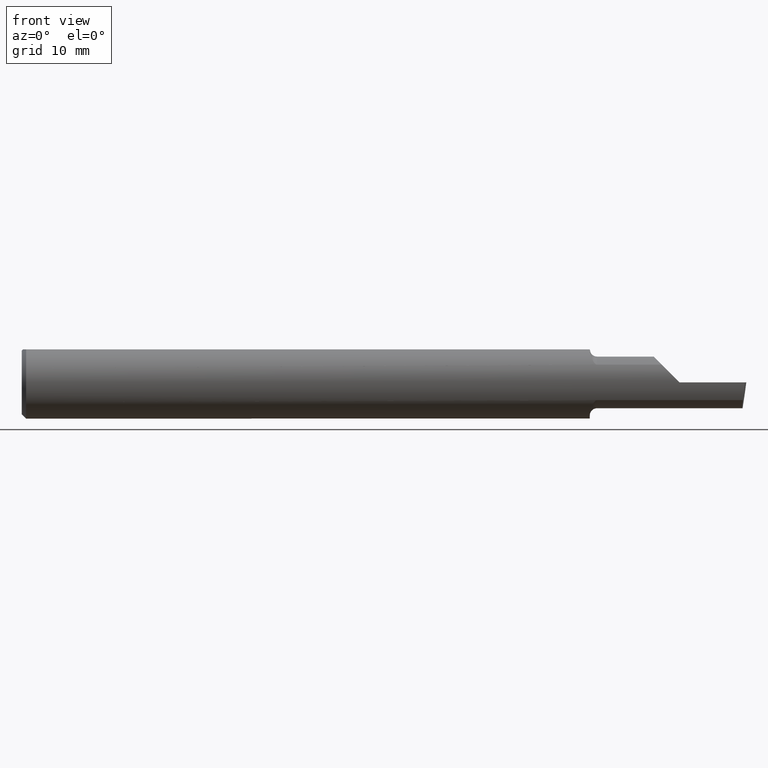
[diagram: clean part render]
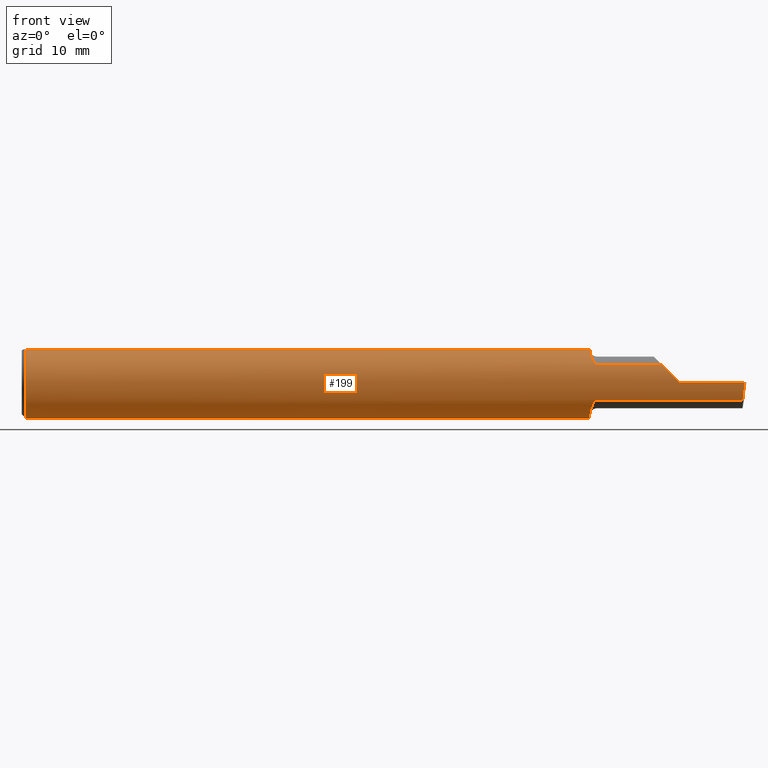
[diagram: same view with one face highlighted and labeled with its STEP entity id]
A machine part, front view. The second image highlights one B-rep face of the part: STEP entity #199.
In plain terms, the highlighted cylindrical surface (edge-blend (fillet) strip) has radius 3.1712 mm, axis along (-1, -0, -0).
Its self-contained STEP definition (entity closure, byte-faithful):
#2 = ORIENTED_EDGE ( 'NONE', *, *, #433, .F. ) ;
#10 = ORIENTED_EDGE ( 'NONE', *, *, #649, .F. ) ;
#19 = CARTESIAN_POINT ( 'NONE',  ( 2.494815187529301426, -0.1248500000000000304, -6.615452481474715797E-17 ) ) ;
#24 = EDGE_CURVE ( 'NONE', #72, #584, #338, .T. ) ;
#30 = DIRECTION ( 'NONE',  ( 0.0000000000000000000, 0.0000000000000000000, -1.000000000000000000 ) ) ;
#37 = B_SPLINE_CURVE_WITH_KNOTS ( 'NONE', 3,
 ( #599, #324, #480, #531, #265, #326, #372, #655, #144, #647, #149, #436 ),
 .UNSPECIFIED., .F., .F.,
 ( 4, 2, 2, 2, 2, 4 ),
 ( 1.958506483897801753E-07, 0.0001392669359846166399, 0.0002783380213208434643, 0.0005564801919932976012, 0.001112764533338206092, 0.002225333216028027410 ),
 .UNSPECIFIED. ) ;
#42 = CARTESIAN_POINT ( 'NONE',  ( 0.01499999999999999424, 0.0000000000000000000, 0.0000000000000000000 ) ) ;
#50 = B_SPLINE_CURVE_WITH_KNOTS ( 'NONE', 3,
 ( #122, #233, #346, #411, #131, #518, #524, #419, #198, #636, #695, #575, #247, #139 ),
 .UNSPECIFIED., .F., .F.,
 ( 4, 2, 2, 2, 2, 2, 4 ),
 ( 4.804672186336111182E-07, 0.0005473133578656328617, 0.001094146248512631965, 0.001640979139159630959, 0.001914395584483130890, 0.002051103807144887253, 0.002187812029806642748 ),
 .UNSPECIFIED. ) ;
#53 = EDGE_CURVE ( 'NONE', #387, #214, #674, .T. ) ;
#54 = CYLINDRICAL_SURFACE ( 'NONE', #143, 0.1248500000000000026 ) ;
#72 = VERTEX_POINT ( 'NONE', #19 ) ;
#73 = EDGE_CURVE ( 'NONE', #686, #331, #595, .T. ) ;
#74 = LINE ( 'NONE', #118, #170 ) ;
#79 =( BOUNDED_CURVE ( )  B_SPLINE_CURVE ( 3, ( #165, #545, #449, #669 ),
 .UNSPECIFIED., .F., .T. ) 
 B_SPLINE_CURVE_WITH_KNOTS ( ( 4, 4 ),
 ( 4.712388980384689674, 5.224783288303640916 ),
 .UNSPECIFIED. ) 
 CURVE ( )  GEOMETRIC_REPRESENTATION_ITEM ( )  RATIONAL_B_SPLINE_CURVE ( ( 1.000000000000000000, 0.9782404171696013062, 0.9782404171696013062, 1.000000000000000000 ) ) 
 REPRESENTATION_ITEM ( '' )  );
#83 = EDGE_CURVE ( 'NONE', #456, #152, #37, .T. ) ;
#97 = CARTESIAN_POINT ( 'NONE',  ( 2.489748215127380870, -0.1193864177600010845, -0.04241784104289512969 ) ) ;
#101 = DIRECTION ( 'NONE',  ( 0.0000000000000000000, 0.0000000000000000000, 1.000000000000000000 ) ) ;
#116 = CARTESIAN_POINT ( 'NONE',  ( 1.960000097795984608, -0.05124158467435454417, 0.1138500000000000345 ) ) ;
#118 = CARTESIAN_POINT ( 'NONE',  ( 0.0000000000000000000, -0.05124158467494919350, 0.1138500000000000345 ) ) ;
#122 = CARTESIAN_POINT ( 'NONE',  ( 1.960000097795984608, -0.05124158467435454417, 0.1138500000000000345 ) ) ;
#128 = CARTESIAN_POINT ( 'NONE',  ( 2.270000000000000018, -0.1248500000000000165, 2.816687638038912303E-17 ) ) ;
#131 = CARTESIAN_POINT ( 'NONE',  ( 1.963123628621459504, -0.08156933505673470697, 0.09478144068379323883 ) ) ;
#139 = CARTESIAN_POINT ( 'NONE',  ( 1.985000000000000098, -0.1088159090909094073, 0.06120964326573843234 ) ) ;
#143 = AXIS2_PLACEMENT_3D ( 'NONE', #332, #602, #101 ) ;
#144 = CARTESIAN_POINT ( 'NONE',  ( 1.966341859756229216, -0.09164079654472229164, -0.08508064213884949933 ) ) ;
#148 = EDGE_CURVE ( 'NONE', #611, #72, #379, .T. ) ;
#149 = CARTESIAN_POINT ( 'NONE',  ( 1.959999999999999520, -0.06435233443826804400, -0.1079743783864397788 ) ) ;
#152 = VERTEX_POINT ( 'NONE', #157 ) ;
#157 = CARTESIAN_POINT ( 'NONE',  ( 1.959999999999999964, -0.05106022727272737510, -0.1139314517192571846 ) ) ;
#165 = CARTESIAN_POINT ( 'NONE',  ( 2.270000000000000018, -0.1248500000000000165, 2.816687638038912303E-17 ) ) ;
#170 = VECTOR ( 'NONE', #469, 39.37007874015748143 ) ;
#171 = EDGE_CURVE ( 'NONE', #584, #214, #79, .T. ) ;
#188 = EDGE_CURVE ( 'NONE', #152, #234, #461, .T. ) ;
#198 = CARTESIAN_POINT ( 'NONE',  ( 1.974298474000476977, -0.1041086701287579075, 0.06897617952042765788 ) ) ;
#199 = ADVANCED_FACE ( 'NONE', ( #439 ), #54, .T. ) ;
#200 = CIRCLE ( 'NONE', #333, 0.1248500000000000026 ) ;
#212 = DIRECTION ( 'NONE',  ( 0.0000000000000000000, 0.0000000000000000000, 1.000000000000000000 ) ) ;
#214 = VERTEX_POINT ( 'NONE', #680 ) ;
#233 = CARTESIAN_POINT ( 'NONE',  ( 1.960007259122698242, -0.05787968516888347681, 0.1108623250897052548 ) ) ;
#234 = VERTEX_POINT ( 'NONE', #404 ) ;
#240 = CARTESIAN_POINT ( 'NONE',  ( 0.01499999999999999424, 0.0000000000000000000, -0.1248500000000000026 ) ) ;
#247 = CARTESIAN_POINT ( 'NONE',  ( 1.983151621368536288, -0.1088159090914120330, 0.06120964326484491791 ) ) ;
#264 = VECTOR ( 'NONE', #554, 39.37007874015748143 ) ;
#265 = CARTESIAN_POINT ( 'NONE',  ( 1.977418472017428597, -0.1064706388662829128, -0.06522095769404975818 ) ) ;
#274 = DIRECTION ( 'NONE',  ( 1.000000000000000000, 0.0000000000000000000, 0.0000000000000000000 ) ) ;
#279 = ORIENTED_EDGE ( 'NONE', *, *, #24, .T. ) ;
#281 = CARTESIAN_POINT ( 'NONE',  ( 2.492166948426750128, -0.1248499999999999888, -0.02156078579982241214 ) ) ;
#288 = ORIENTED_EDGE ( 'NONE', *, *, #188, .F. ) ;
#305 = VERTEX_POINT ( 'NONE', #116 ) ;
#306 = CARTESIAN_POINT ( 'NONE',  ( 2.135000000000000231, -0.1088159090909091575, -0.06120964326573871683 ) ) ;
#308 = LINE ( 'NONE', #306, #525 ) ;
#324 = CARTESIAN_POINT ( 'NONE',  ( 1.983136503623037949, -0.1088159090909093379, -0.06120964326573845316 ) ) ;
#325 = EDGE_CURVE ( 'NONE', #686, #234, #380, .T. ) ;
#326 = CARTESIAN_POINT ( 'NONE',  ( 1.974260533375047144, -0.1040753176265711982, -0.06902783361385356198 ) ) ;
#328 = CARTESIAN_POINT ( 'NONE',  ( 1.959999999999999964, 0.0000000000000000000, 0.0000000000000000000 ) ) ;
#331 = VERTEX_POINT ( 'NONE', #240 ) ;
#332 = CARTESIAN_POINT ( 'NONE',  ( 0.0000000000000000000, 0.0000000000000000000, 0.0000000000000000000 ) ) ;
#333 = AXIS2_PLACEMENT_3D ( 'NONE', #42, #557, #495 ) ;
#338 = LINE ( 'NONE', #487, #429 ) ;
#346 = CARTESIAN_POINT ( 'NONE',  ( 1.960398955714025337, -0.06414339738310573247, 0.1073503907437361876 ) ) ;
#361 = CARTESIAN_POINT ( 'NONE',  ( 1.985000000000000098, -0.1088159090909094073, 0.06120964326573843234 ) ) ;
#363 = AXIS2_PLACEMENT_3D ( 'NONE', #707, #703, #212 ) ;
#372 = CARTESIAN_POINT ( 'NONE',  ( 1.972652750757541762, -0.1022351105670216975, -0.07173965961731917917 ) ) ;
#374 = DIRECTION ( 'NONE',  ( 1.000000000000000000, 0.0000000000000000000, 0.0000000000000000000 ) ) ;
#379 =( BOUNDED_CURVE ( )  B_SPLINE_CURVE ( 3, ( #384, #97, #281, #715 ),
 .UNSPECIFIED., .F., .T. ) 
 B_SPLINE_CURVE_WITH_KNOTS ( ( 4, 4 ),
 ( 0.8483525745957760655, 1.360746882514725309 ),
 .UNSPECIFIED. ) 
 CURVE ( )  GEOMETRIC_REPRESENTATION_ITEM ( )  RATIONAL_B_SPLINE_CURVE ( ( 1.000000000000000000, 0.9782404171696015283, 0.9782404171696015283, 1.000000000000000000 ) ) 
 REPRESENTATION_ITEM ( '' )  );
#380 = LINE ( 'NONE', #502, #264 ) ;
#384 = CARTESIAN_POINT ( 'NONE',  ( 2.487716879513912627, -0.1088159090909091575, -0.06120964326573871683 ) ) ;
#387 = VERTEX_POINT ( 'NONE', #361 ) ;
#395 = ORIENTED_EDGE ( 'NONE', *, *, #83, .F. ) ;
#398 = EDGE_LOOP ( 'NONE', ( #10, #503, #279, #665, #455, #650, #523, #2, #586, #700, #288, #395 ) ) ;
#404 = CARTESIAN_POINT ( 'NONE',  ( 1.959999999999999964, 0.05124158467494921432, 0.1138500000000000206 ) ) ;
#411 = CARTESIAN_POINT ( 'NONE',  ( 1.961949480984250593, -0.07596136197030141368, 0.09933958580695161078 ) ) ;
#419 = CARTESIAN_POINT ( 'NONE',  ( 1.972671163500537839, -0.1022596512739000207, 0.07170602318528794539 ) ) ;
#420 = DIRECTION ( 'NONE',  ( -1.000000000000000000, -0.0000000000000000000, -0.0000000000000000000 ) ) ;
#429 = VECTOR ( 'NONE', #699, 39.37007874015748143 ) ;
#433 = EDGE_CURVE ( 'NONE', #331, #484, #200, .T. ) ;
#436 = CARTESIAN_POINT ( 'NONE',  ( 1.959999999999999964, -0.05106022727272737510, -0.1139314517192571846 ) ) ;
#439 = FACE_OUTER_BOUND ( 'NONE', #398, .T. ) ;
#449 = CARTESIAN_POINT ( 'NONE',  ( 2.227582158957104763, -0.1193864177600010706, 0.04241784104289515744 ) ) ;
#455 = ORIENTED_EDGE ( 'NONE', *, *, #53, .F. ) ;
#456 = VERTEX_POINT ( 'NONE', #553 ) ;
#461 = CIRCLE ( 'NONE', #683, 0.1248500000000000026 ) ;
#469 = DIRECTION ( 'NONE',  ( -1.000000000000000000, -0.0000000000000000000, -0.0000000000000000000 ) ) ;
#480 = CARTESIAN_POINT ( 'NONE',  ( 1.981430773366643638, -0.1083837666170489045, -0.06198269038833995742 ) ) ;
#484 = VERTEX_POINT ( 'NONE', #726 ) ;
#487 = CARTESIAN_POINT ( 'NONE',  ( 4.111069666048746882E-31, -0.1248499999999999888, 9.802154982235641300E-16 ) ) ;
#495 = DIRECTION ( 'NONE',  ( 0.0000000000000000000, 0.0000000000000000000, 1.000000000000000000 ) ) ;
#502 = CARTESIAN_POINT ( 'NONE',  ( 0.0000000000000000000, 0.05124158467494922820, 0.1138500000000000345 ) ) ;
#503 = ORIENTED_EDGE ( 'NONE', *, *, #148, .T. ) ;
#518 = CARTESIAN_POINT ( 'NONE',  ( 1.966367198474935796, -0.09170680217251642175, 0.08501141308662152341 ) ) ;
#523 = ORIENTED_EDGE ( 'NONE', *, *, #582, .T. ) ;
#524 = CARTESIAN_POINT ( 'NONE',  ( 1.968377233828140893, -0.09625857022040647248, 0.07979273349095064582 ) ) ;
#525 = VECTOR ( 'NONE', #420, 39.37007874015748143 ) ;
#531 = CARTESIAN_POINT ( 'NONE',  ( 1.978584160803692482, -0.1072016464447191064, -0.06400548237000620866 ) ) ;
#540 = CARTESIAN_POINT ( 'NONE',  ( 2.135000000000000231, -0.1088159090909091575, 0.06120964326573871683 ) ) ;
#545 = CARTESIAN_POINT ( 'NONE',  ( 2.248439214200177449, -0.1248500000000000165, 0.02156078579982235316 ) ) ;
#553 = CARTESIAN_POINT ( 'NONE',  ( 1.985000000000000098, -0.1088159090909093379, -0.06120964326573849479 ) ) ;
#554 = DIRECTION ( 'NONE',  ( 1.000000000000000000, 0.0000000000000000000, 0.0000000000000000000 ) ) ;
#557 = DIRECTION ( 'NONE',  ( -1.000000000000000000, -0.0000000000000000000, -0.0000000000000000000 ) ) ;
#575 = CARTESIAN_POINT ( 'NONE',  ( 1.981429951084875629, -0.1083820298415236888, 0.06198549150329479840 ) ) ;
#582 = EDGE_CURVE ( 'NONE', #305, #484, #74, .T. ) ;
#583 = VECTOR ( 'NONE', #374, 39.37007874015748143 ) ;
#584 = VERTEX_POINT ( 'NONE', #128 ) ;
#586 = ORIENTED_EDGE ( 'NONE', *, *, #73, .F. ) ;
#595 = CIRCLE ( 'NONE', #363, 0.1248500000000000026 ) ;
#599 = CARTESIAN_POINT ( 'NONE',  ( 1.985000000000000098, -0.1088159090909093379, -0.06120964326573849479 ) ) ;
#602 = DIRECTION ( 'NONE',  ( -1.000000000000000000, -0.0000000000000000000, -0.0000000000000000000 ) ) ;
#611 = VERTEX_POINT ( 'NONE', #631 ) ;
#624 = EDGE_CURVE ( 'NONE', #305, #387, #50, .T. ) ;
#631 = CARTESIAN_POINT ( 'NONE',  ( 2.487716879513912627, -0.1088159090909091575, -0.06120964326573871683 ) ) ;
#636 = CARTESIAN_POINT ( 'NONE',  ( 1.977431632364337499, -0.1064782986022653199, 0.06520809716645641074 ) ) ;
#647 = CARTESIAN_POINT ( 'NONE',  ( 1.961502585305459068, -0.07647633808930116850, -0.09967851947582061223 ) ) ;
#649 = EDGE_CURVE ( 'NONE', #611, #456, #308, .T. ) ;
#650 = ORIENTED_EDGE ( 'NONE', *, *, #624, .F. ) ;
#654 = CARTESIAN_POINT ( 'NONE',  ( 0.01499999999999999424, 0.05124158467494922820, 0.1138500000000000345 ) ) ;
#655 = CARTESIAN_POINT ( 'NONE',  ( 1.968397821753969268, -0.09628495161689383519, -0.07975604660947213653 ) ) ;
#665 = ORIENTED_EDGE ( 'NONE', *, *, #171, .T. ) ;
#669 = CARTESIAN_POINT ( 'NONE',  ( 2.208790356734260829, -0.1088159090909090465, 0.06120964326573886255 ) ) ;
#674 = LINE ( 'NONE', #540, #583 ) ;
#680 = CARTESIAN_POINT ( 'NONE',  ( 2.208790356734260829, -0.1088159090909090465, 0.06120964326573886255 ) ) ;
#683 = AXIS2_PLACEMENT_3D ( 'NONE', #328, #274, #30 ) ;
#686 = VERTEX_POINT ( 'NONE', #654 ) ;
#695 = CARTESIAN_POINT ( 'NONE',  ( 1.978607476457555858, -0.1072127130250099952, 0.06398671514690235096 ) ) ;
#699 = DIRECTION ( 'NONE',  ( -1.000000000000000000, -0.0000000000000000000, -0.0000000000000000000 ) ) ;
#700 = ORIENTED_EDGE ( 'NONE', *, *, #325, .T. ) ;
#703 = DIRECTION ( 'NONE',  ( -1.000000000000000000, -0.0000000000000000000, -0.0000000000000000000 ) ) ;
#707 = CARTESIAN_POINT ( 'NONE',  ( 0.01499999999999999424, 0.0000000000000000000, 0.0000000000000000000 ) ) ;
#715 = CARTESIAN_POINT ( 'NONE',  ( 2.494815187529301426, -0.1248500000000000304, -6.615452481474715797E-17 ) ) ;
#726 = CARTESIAN_POINT ( 'NONE',  ( 0.01499999999999998730, -0.05124158467494919350, 0.1138500000000000345 ) ) ;